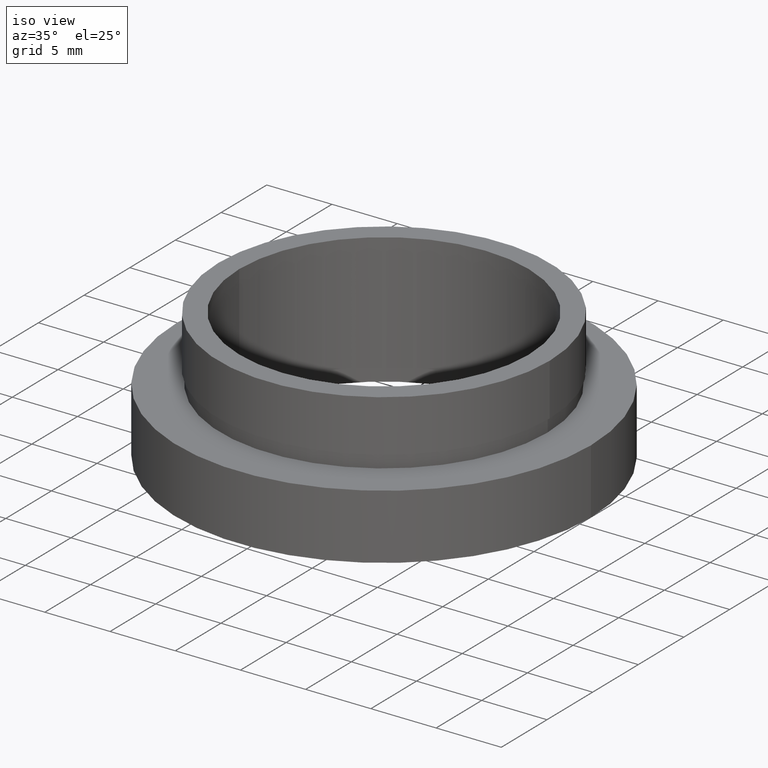
[diagram: clean part render]
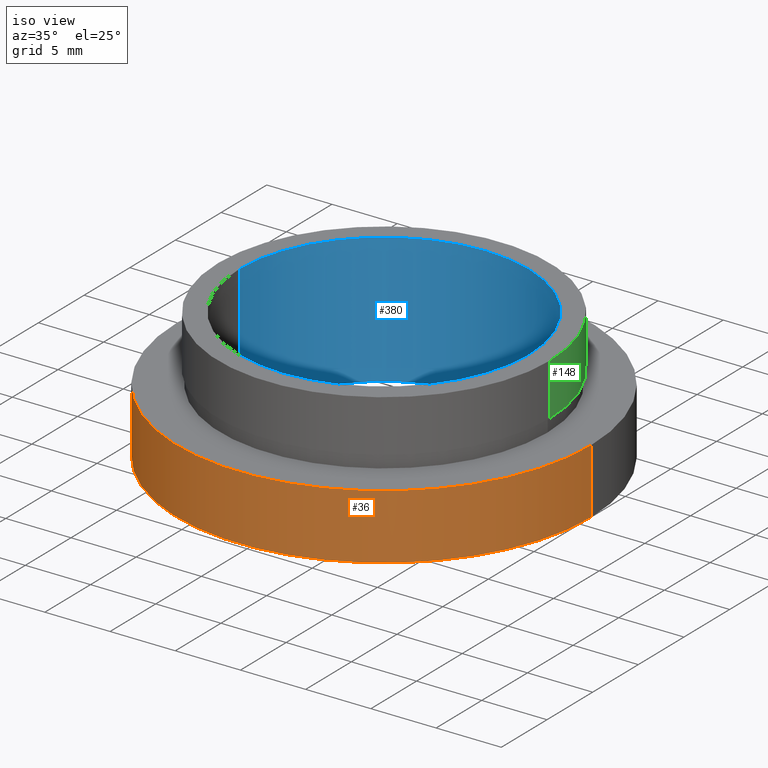
[diagram: same view with three faces highlighted in distinct colors, each labeled with its STEP entity id]
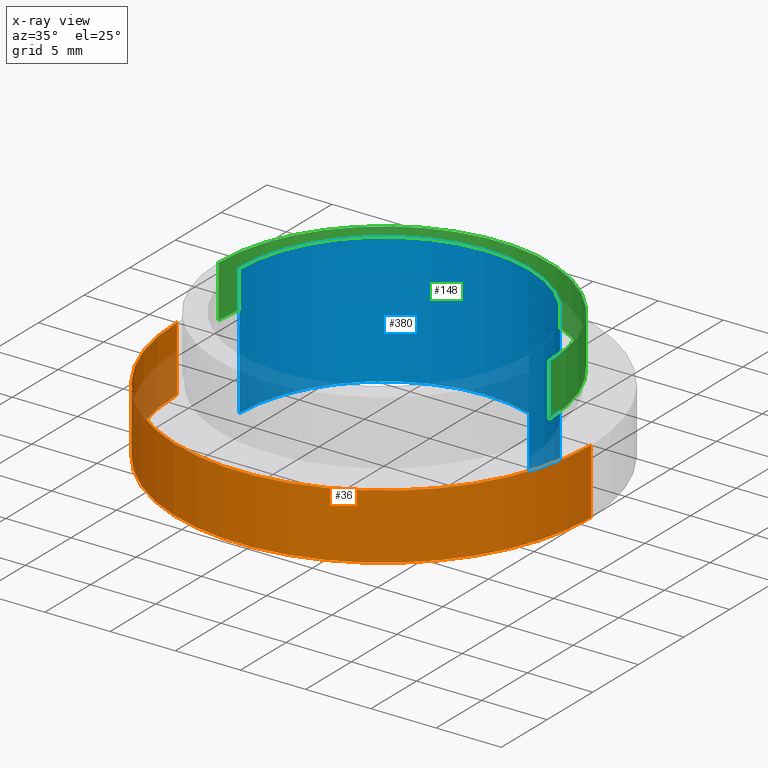
[diagram: x-ray of the same camera — body ghosted, the three highlighted faces saturated]
A machine part, iso view with three faces highlighted in distinct colors.
The next image is the same camera in x-ray (body ghosted, the three faces saturated) — at least one of them is partly hidden behind the body in this view.
Their STEP definitions:

[orange] entity #36 — the highlighted cylindrical surface (partial cylindrical patch) has radius 15.875 mm, axis along (-0, -0, -1).
#16 = DIRECTION ( 'NONE',  ( -0.0000000000000000000, -0.0000000000000000000, -1.000000000000000000 ) ) ;
#25 = CARTESIAN_POINT ( 'NONE',  ( 0.0000000000000000000, 0.0000000000000000000, -5.000000000000000900 ) ) ;
#29 = EDGE_CURVE ( 'NONE', #249, #195, #245, .T. ) ;
#36 = ADVANCED_FACE ( 'NONE', ( #360 ), #318, .T. ) ;
#47 = CARTESIAN_POINT ( 'NONE',  ( 15.87500000000000000, 1.944126793646423200E-015, -19.14057971014493000 ) ) ;
#58 = ORIENTED_EDGE ( 'NONE', *, *, #157, .T. ) ;
#62 = AXIS2_PLACEMENT_3D ( 'NONE', #331, #298, #241 ) ;
#71 = CARTESIAN_POINT ( 'NONE',  ( -15.87500000000000000, 0.0000000000000000000, -5.000000000000000900 ) ) ;
#85 = CARTESIAN_POINT ( 'NONE',  ( 0.0000000000000000000, 0.0000000000000000000, -19.14057971014493000 ) ) ;
#106 = DIRECTION ( 'NONE',  ( -1.000000000000000000, 0.0000000000000000000, 0.0000000000000000000 ) ) ;
#121 = AXIS2_PLACEMENT_3D ( 'NONE', #85, #16, #401 ) ;
#124 = DIRECTION ( 'NONE',  ( -0.0000000000000000000, -0.0000000000000000000, -1.000000000000000000 ) ) ;
#128 = EDGE_LOOP ( 'NONE', ( #194, #374, #58, #206 ) ) ;
#139 = CARTESIAN_POINT ( 'NONE',  ( -15.87500000000000000, 0.0000000000000000000, -10.00000000000000000 ) ) ;
#157 = EDGE_CURVE ( 'NONE', #202, #350, #316, .T. ) ;
#171 = VECTOR ( 'NONE', #124, 1000.000000000000000 ) ;
#194 = ORIENTED_EDGE ( 'NONE', *, *, #29, .F. ) ;
#195 = VERTEX_POINT ( 'NONE', #400 ) ;
#202 = VERTEX_POINT ( 'NONE', #71 ) ;
#206 = ORIENTED_EDGE ( 'NONE', *, *, #261, .F. ) ;
#223 = DIRECTION ( 'NONE',  ( -0.0000000000000000000, -0.0000000000000000000, -1.000000000000000000 ) ) ;
#241 = DIRECTION ( 'NONE',  ( -1.000000000000000000, 0.0000000000000000000, 0.0000000000000000000 ) ) ;
#245 = LINE ( 'NONE', #47, #420 ) ;
#249 = VERTEX_POINT ( 'NONE', #371 ) ;
#261 = EDGE_CURVE ( 'NONE', #195, #350, #429, .T. ) ;
#288 = CIRCLE ( 'NONE', #315, 15.87500000000000000 ) ;
#298 = DIRECTION ( 'NONE',  ( -0.0000000000000000000, -0.0000000000000000000, -1.000000000000000000 ) ) ;
#313 = DIRECTION ( 'NONE',  ( -0.0000000000000000000, -0.0000000000000000000, -1.000000000000000000 ) ) ;
#315 = AXIS2_PLACEMENT_3D ( 'NONE', #25, #223, #106 ) ;
#316 = LINE ( 'NONE', #412, #171 ) ;
#318 = CYLINDRICAL_SURFACE ( 'NONE', #121, 15.87500000000000000 ) ;
#331 = CARTESIAN_POINT ( 'NONE',  ( 0.0000000000000000000, 0.0000000000000000000, -10.00000000000000000 ) ) ;
#350 = VERTEX_POINT ( 'NONE', #139 ) ;
#360 = FACE_OUTER_BOUND ( 'NONE', #128, .T. ) ;
#371 = CARTESIAN_POINT ( 'NONE',  ( 15.87500000000000000, 1.944126793646423200E-015, -5.000000000000000900 ) ) ;
#374 = ORIENTED_EDGE ( 'NONE', *, *, #425, .T. ) ;
#400 = CARTESIAN_POINT ( 'NONE',  ( 15.87500000000000000, 1.944126793646423200E-015, -10.00000000000000000 ) ) ;
#401 = DIRECTION ( 'NONE',  ( -1.000000000000000000, 0.0000000000000000000, 0.0000000000000000000 ) ) ;
#412 = CARTESIAN_POINT ( 'NONE',  ( -15.87500000000000000, 0.0000000000000000000, -19.14057971014493000 ) ) ;
#420 = VECTOR ( 'NONE', #313, 1000.000000000000000 ) ;
#425 = EDGE_CURVE ( 'NONE', #249, #202, #288, .T. ) ;
#429 = CIRCLE ( 'NONE', #62, 15.87500000000000000 ) ;

[blue] entity #380 — the highlighted cylindrical surface (partial cylindrical patch) has radius 11.1 mm, axis along (-0, -0, -1).
#20 = CIRCLE ( 'NONE', #255, 11.10000000000000100 ) ;
#28 = CARTESIAN_POINT ( 'NONE',  ( -11.10000000000000100, 0.0000000000000000000, -10.00000000000000000 ) ) ;
#34 = EDGE_CURVE ( 'NONE', #66, #403, #78, .T. ) ;
#42 = EDGE_CURVE ( 'NONE', #379, #403, #100, .T. ) ;
#65 = DIRECTION ( 'NONE',  ( -1.000000000000000000, 0.0000000000000000000, 0.0000000000000000000 ) ) ;
#66 = VERTEX_POINT ( 'NONE', #364 ) ;
#78 = LINE ( 'NONE', #209, #164 ) ;
#80 = FACE_OUTER_BOUND ( 'NONE', #326, .T. ) ;
#100 = CIRCLE ( 'NONE', #219, 11.10000000000000100 ) ;
#101 = ORIENTED_EDGE ( 'NONE', *, *, #34, .F. ) ;
#125 = ORIENTED_EDGE ( 'NONE', *, *, #42, .T. ) ;
#129 = DIRECTION ( 'NONE',  ( -0.0000000000000000000, -0.0000000000000000000, -1.000000000000000000 ) ) ;
#145 = DIRECTION ( 'NONE',  ( -0.0000000000000000000, -0.0000000000000000000, -1.000000000000000000 ) ) ;
#158 = CARTESIAN_POINT ( 'NONE',  ( 0.0000000000000000000, 0.0000000000000000000, -19.14057971014493000 ) ) ;
#164 = VECTOR ( 'NONE', #370, 1000.000000000000000 ) ;
#174 = DIRECTION ( 'NONE',  ( -1.000000000000000000, 0.0000000000000000000, 0.0000000000000000000 ) ) ;
#179 = CYLINDRICAL_SURFACE ( 'NONE', #289, 11.10000000000000100 ) ;
#182 = VERTEX_POINT ( 'NONE', #418 ) ;
#187 = EDGE_CURVE ( 'NONE', #182, #66, #20, .T. ) ;
#188 = CARTESIAN_POINT ( 'NONE',  ( -11.10000000000000100, 0.0000000000000000000, -19.14057971014493000 ) ) ;
#209 = CARTESIAN_POINT ( 'NONE',  ( 11.10000000000000100, 1.359357947053562400E-015, -19.14057971014493000 ) ) ;
#219 = AXIS2_PLACEMENT_3D ( 'NONE', #311, #129, #65 ) ;
#255 = AXIS2_PLACEMENT_3D ( 'NONE', #270, #274, #174 ) ;
#270 = CARTESIAN_POINT ( 'NONE',  ( 0.0000000000000000000, 0.0000000000000000000, 0.0000000000000000000 ) ) ;
#274 = DIRECTION ( 'NONE',  ( -0.0000000000000000000, -0.0000000000000000000, -1.000000000000000000 ) ) ;
#277 = ORIENTED_EDGE ( 'NONE', *, *, #187, .F. ) ;
#282 = EDGE_CURVE ( 'NONE', #182, #379, #296, .T. ) ;
#286 = ORIENTED_EDGE ( 'NONE', *, *, #282, .T. ) ;
#289 = AXIS2_PLACEMENT_3D ( 'NONE', #158, #145, #406 ) ;
#290 = DIRECTION ( 'NONE',  ( -0.0000000000000000000, -0.0000000000000000000, -1.000000000000000000 ) ) ;
#296 = LINE ( 'NONE', #188, #394 ) ;
#311 = CARTESIAN_POINT ( 'NONE',  ( 0.0000000000000000000, 0.0000000000000000000, -10.00000000000000000 ) ) ;
#326 = EDGE_LOOP ( 'NONE', ( #101, #277, #286, #125 ) ) ;
#364 = CARTESIAN_POINT ( 'NONE',  ( 11.10000000000000100, 1.359357947053562400E-015, 0.0000000000000000000 ) ) ;
#370 = DIRECTION ( 'NONE',  ( -0.0000000000000000000, -0.0000000000000000000, -1.000000000000000000 ) ) ;
#379 = VERTEX_POINT ( 'NONE', #28 ) ;
#380 = ADVANCED_FACE ( 'NONE', ( #80 ), #179, .F. ) ;
#394 = VECTOR ( 'NONE', #290, 1000.000000000000000 ) ;
#403 = VERTEX_POINT ( 'NONE', #423 ) ;
#406 = DIRECTION ( 'NONE',  ( -1.000000000000000000, 0.0000000000000000000, 0.0000000000000000000 ) ) ;
#418 = CARTESIAN_POINT ( 'NONE',  ( -11.10000000000000100, 0.0000000000000000000, 0.0000000000000000000 ) ) ;
#423 = CARTESIAN_POINT ( 'NONE',  ( 11.10000000000000100, 1.359357947053562400E-015, -10.00000000000000000 ) ) ;

[green] entity #148 — the highlighted cylindrical surface (partial cylindrical patch) has radius 12.7 mm, axis along (-0, -0, -1).
#6 = EDGE_CURVE ( 'NONE', #414, #295, #149, .T. ) ;
#19 = DIRECTION ( 'NONE',  ( -1.000000000000000000, 0.0000000000000000000, 0.0000000000000000000 ) ) ;
#30 = FACE_OUTER_BOUND ( 'NONE', #346, .T. ) ;
#40 = EDGE_CURVE ( 'NONE', #414, #322, #268, .T. ) ;
#46 = DIRECTION ( 'NONE',  ( -0.0000000000000000000, -0.0000000000000000000, -1.000000000000000000 ) ) ;
#53 = VECTOR ( 'NONE', #292, 1000.000000000000000 ) ;
#61 = CIRCLE ( 'NONE', #306, 12.70000000000000100 ) ;
#94 = ORIENTED_EDGE ( 'NONE', *, *, #40, .T. ) ;
#119 = DIRECTION ( 'NONE',  ( -0.0000000000000000000, -0.0000000000000000000, -1.000000000000000000 ) ) ;
#148 = ADVANCED_FACE ( 'NONE', ( #30 ), #200, .T. ) ;
#149 = LINE ( 'NONE', #384, #53 ) ;
#176 = DIRECTION ( 'NONE',  ( -0.0000000000000000000, -0.0000000000000000000, -1.000000000000000000 ) ) ;
#200 = CYLINDRICAL_SURFACE ( 'NONE', #244, 12.70000000000000100 ) ;
#242 = CARTESIAN_POINT ( 'NONE',  ( 12.70000000000000100, 1.555301434917138600E-015, -4.000000000000000000 ) ) ;
#244 = AXIS2_PLACEMENT_3D ( 'NONE', #357, #176, #258 ) ;
#257 = ORIENTED_EDGE ( 'NONE', *, *, #6, .F. ) ;
#258 = DIRECTION ( 'NONE',  ( -1.000000000000000000, 0.0000000000000000000, 0.0000000000000000000 ) ) ;
#268 = CIRCLE ( 'NONE', #404, 12.70000000000000100 ) ;
#273 = ORIENTED_EDGE ( 'NONE', *, *, #351, .T. ) ;
#278 = DIRECTION ( 'NONE',  ( -0.0000000000000000000, -0.0000000000000000000, -1.000000000000000000 ) ) ;
#292 = DIRECTION ( 'NONE',  ( -0.0000000000000000000, -0.0000000000000000000, -1.000000000000000000 ) ) ;
#295 = VERTEX_POINT ( 'NONE', #395 ) ;
#304 = LINE ( 'NONE', #422, #355 ) ;
#306 = AXIS2_PLACEMENT_3D ( 'NONE', #363, #46, #19 ) ;
#322 = VERTEX_POINT ( 'NONE', #391 ) ;
#346 = EDGE_LOOP ( 'NONE', ( #94, #273, #413, #257 ) ) ;
#351 = EDGE_CURVE ( 'NONE', #322, #405, #304, .T. ) ;
#355 = VECTOR ( 'NONE', #119, 1000.000000000000000 ) ;
#357 = CARTESIAN_POINT ( 'NONE',  ( 0.0000000000000000000, 0.0000000000000000000, -19.14057971014493000 ) ) ;
#363 = CARTESIAN_POINT ( 'NONE',  ( 0.0000000000000000000, 0.0000000000000000000, -4.000000000000000000 ) ) ;
#378 = CARTESIAN_POINT ( 'NONE',  ( 0.0000000000000000000, 0.0000000000000000000, 0.0000000000000000000 ) ) ;
#384 = CARTESIAN_POINT ( 'NONE',  ( -12.70000000000000100, 0.0000000000000000000, -19.14057971014493000 ) ) ;
#387 = DIRECTION ( 'NONE',  ( -1.000000000000000000, 0.0000000000000000000, 0.0000000000000000000 ) ) ;
#391 = CARTESIAN_POINT ( 'NONE',  ( 12.70000000000000100, 1.555301434917138600E-015, 0.0000000000000000000 ) ) ;
#395 = CARTESIAN_POINT ( 'NONE',  ( -12.70000000000000100, 0.0000000000000000000, -4.000000000000000000 ) ) ;
#404 = AXIS2_PLACEMENT_3D ( 'NONE', #378, #278, #387 ) ;
#405 = VERTEX_POINT ( 'NONE', #242 ) ;
#413 = ORIENTED_EDGE ( 'NONE', *, *, #419, .F. ) ;
#414 = VERTEX_POINT ( 'NONE', #434 ) ;
#419 = EDGE_CURVE ( 'NONE', #295, #405, #61, .T. ) ;
#422 = CARTESIAN_POINT ( 'NONE',  ( 12.70000000000000100, 1.555301434917138600E-015, -19.14057971014493000 ) ) ;
#434 = CARTESIAN_POINT ( 'NONE',  ( -12.70000000000000100, 0.0000000000000000000, 0.0000000000000000000 ) ) ;